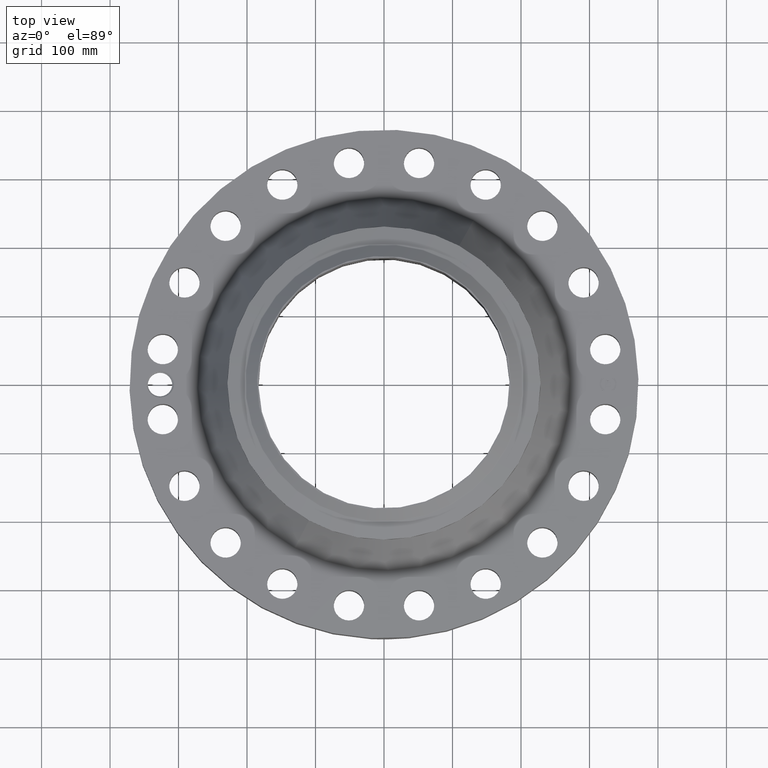
[diagram: clean part render]
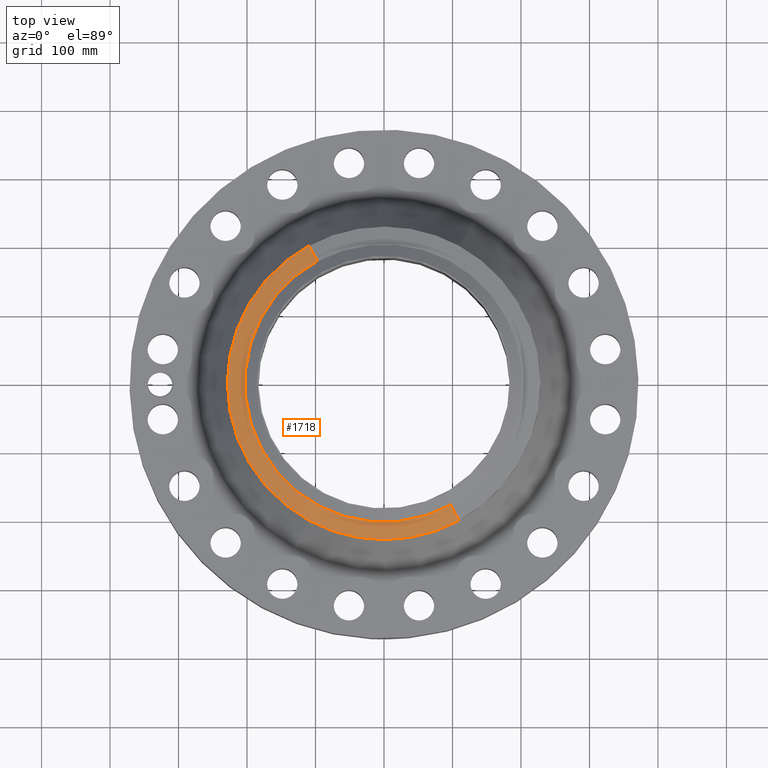
[diagram: same view with one face highlighted and labeled with its STEP entity id]
A machine part, top view. The second image highlights one B-rep face of the part: STEP entity #1718.
In plain terms, the highlighted conical surface has half-angle 80 deg.
Its self-contained STEP definition (entity closure, byte-faithful):
#1328=AXIS2_PLACEMENT_3D('Circle Axis2P3D',#1326,#1327,$) ;
#1683=AXIS2_PLACEMENT_3D('Cone Axis2P3D',#1680,#1681,#1682) ;
#1701=AXIS2_PLACEMENT_3D('Circle Axis2P3D',#1699,#1700,$) ;
#1708=AXIS2_PLACEMENT_3D('Circle Axis2P3D',#1706,#1707,$) ;
#1323=CARTESIAN_POINT('Vertex',(-3.83324392624,7.01670594132,7.04341601925)) ;
#1326=CARTESIAN_POINT('Axis2P3D Location',(0.,0.,7.04341601925)) ;
#1330=CARTESIAN_POINT('Vertex',(3.83324392624,-7.01670594132,7.04341601925)) ;
#1680=CARTESIAN_POINT('Axis2P3D Location',(0.,0.,7.04341601925)) ;
#1685=CARTESIAN_POINT('Line Origine',(4.07403688685,-7.45747449918,6.95485524745)) ;
#1689=CARTESIAN_POINT('Vertex',(4.31482984746,-7.89824305704,6.86629447565)) ;
#1692=CARTESIAN_POINT('Line Origine',(-4.07403688685,7.45747449918,6.95485524745)) ;
#1696=CARTESIAN_POINT('Vertex',(-4.31482984746,7.89824305704,6.86629447565)) ;
#1699=CARTESIAN_POINT('Axis2P3D Location',(0.,0.,6.86629447565)) ;
#1703=CARTESIAN_POINT('Vertex',(-4.31482984746,-7.89824305704,6.86629447565)) ;
#1706=CARTESIAN_POINT('Axis2P3D Location',(0.,0.,6.86629447565)) ;
#1327=DIRECTION('Axis2P3D Direction',(0.,0.,0.0393700787402)) ;
#1681=DIRECTION('Axis2P3D Direction',(-0.,-0.,-0.0393700787402)) ;
#1682=DIRECTION('Axis2P3D XDirection',(-0.0188750212049,0.0345504945626,0.)) ;
#1686=DIRECTION('Vector Direction',(0.0185882672208,-0.0340255949157,-0.00683654242783)) ;
#1693=DIRECTION('Vector Direction',(-0.0185882672208,0.0340255949157,-0.00683654242783)) ;
#1700=DIRECTION('Axis2P3D Direction',(0.,0.,-0.0393700787402)) ;
#1707=DIRECTION('Axis2P3D Direction',(0.,0.,-0.0393700787402)) ;
#1687=VECTOR('Line Direction',#1686,0.0393700787402) ;
#1694=VECTOR('Line Direction',#1693,0.0393700787402) ;
#1712=ORIENTED_EDGE('',*,*,#1691,.F.) ;
#1713=ORIENTED_EDGE('',*,*,#1332,.F.) ;
#1714=ORIENTED_EDGE('',*,*,#1698,.T.) ;
#1715=ORIENTED_EDGE('',*,*,#1705,.T.) ;
#1716=ORIENTED_EDGE('',*,*,#1710,.F.) ;
#1718=ADVANCED_FACE('PartBody',(#1717),#1684,.T.) ;
#1329=CIRCLE('generated circle',#1328,7.99549380996) ;
#1702=CIRCLE('generated circle',#1701,9.00000000004) ;
#1709=CIRCLE('generated circle',#1708,9.00000000004) ;
#1684=CONICAL_SURFACE('Cone',#1683,7.99549380996,1.3962634016) ;
#1332=EDGE_CURVE('',#1324,#1331,#1329,.T.) ;
#1691=EDGE_CURVE('',#1331,#1690,#1688,.T.) ;
#1698=EDGE_CURVE('',#1324,#1697,#1695,.T.) ;
#1705=EDGE_CURVE('',#1697,#1704,#1702,.F.) ;
#1710=EDGE_CURVE('',#1690,#1704,#1709,.T.) ;
#1711=EDGE_LOOP('',(#1712,#1713,#1714,#1715,#1716)) ;
#1717=FACE_OUTER_BOUND('',#1711,.T.) ;
#1688=LINE('Line',#1685,#1687) ;
#1695=LINE('Line',#1692,#1694) ;
#1324=VERTEX_POINT('',#1323) ;
#1331=VERTEX_POINT('',#1330) ;
#1690=VERTEX_POINT('',#1689) ;
#1697=VERTEX_POINT('',#1696) ;
#1704=VERTEX_POINT('',#1703) ;